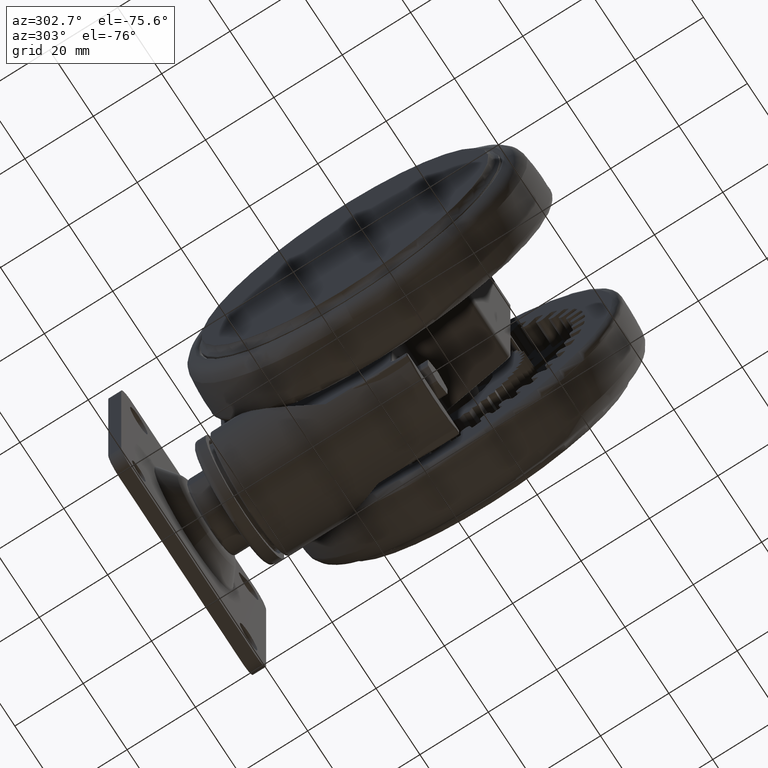
[diagram: clean part render]
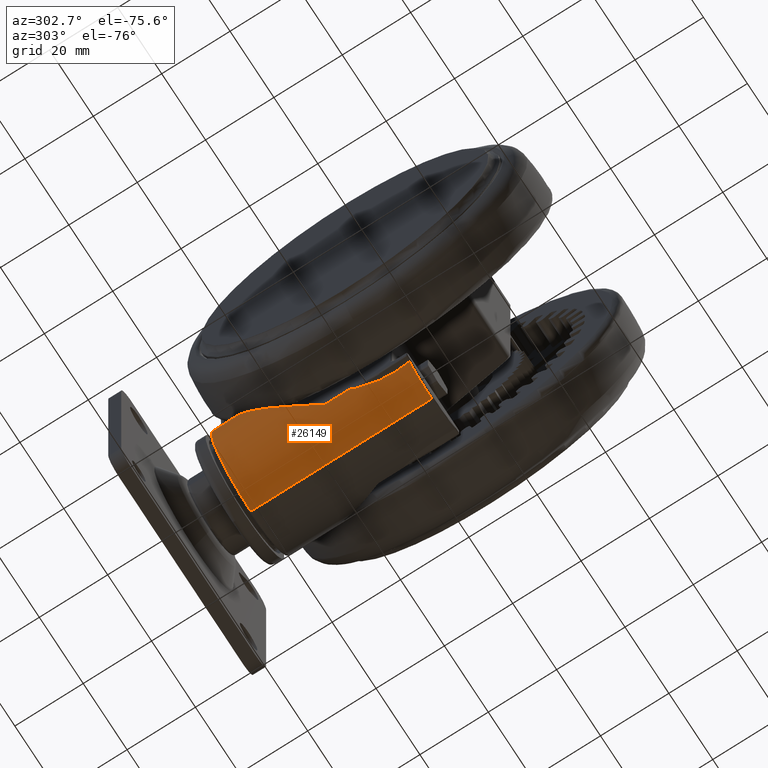
[diagram: same view with one face highlighted and labeled with its STEP entity id]
A machine part, auxiliary view. The second image highlights one B-rep face of the part: STEP entity #26149.
In plain terms, the highlighted cylindrical surface (partial cylindrical patch) has radius 18 mm, axis along (0, -1, 0).
Its self-contained STEP definition (entity closure, byte-faithful):
#95 = VECTOR ( 'NONE', #55644, 1000.000000000000100 ) ;
#1721 = ORIENTED_EDGE ( 'NONE', *, *, #42346, .T. ) ;
#2391 = CARTESIAN_POINT ( 'NONE',  ( 6.476000464306293800, 50.91205195990941200, -32.60000000000154300 ) ) ;
#2786 = B_SPLINE_CURVE_WITH_KNOTS ( 'NONE', 3,
 ( #3073, #32850, #9197, #51374, #15247, #57469, #21307, #63510, #27334, #69576 ),
 .UNSPECIFIED., .F., .F.,
 ( 4, 2, 2, 2, 4 ),
 ( 0.001906315081808173500, 0.009547126951555750400, 0.01145732991899264600, 0.01336753288642953900, 0.01718793882130333400 ),
 .UNSPECIFIED. ) ;
#3073 = CARTESIAN_POINT ( 'NONE',  ( 45.52652324806915400, 20.67186012695275800, -44.09999999999990200 ) ) ;
#3075 = ORIENTED_EDGE ( 'NONE', *, *, #11002, .T. ) ;
#3684 = CARTESIAN_POINT ( 'NONE',  ( 21.75686975995390400, 47.23146822987447300, -50.19156380549986100 ) ) ;
#3952 = CARTESIAN_POINT ( 'NONE',  ( 39.35881004721399300, 33.99384150147793100, -47.15087994683511900 ) ) ;
#4476 = CARTESIAN_POINT ( 'NONE',  ( 45.12416390052679600, 21.28040066082874300, -44.41288413382188300 ) ) ;
#4696 = DIRECTION ( 'NONE',  ( 0.2095320203294540100, -0.9778017858731171700, 0.0000000000000000000 ) ) ;
#4756 = EDGE_CURVE ( 'NONE', #31883, #50589, #8672, .T. ) ;
#4784 = CARTESIAN_POINT ( 'NONE',  ( 11.48250933213939400, 48.70165588472637100, -44.42859405854314800 ) ) ;
#5041 = CARTESIAN_POINT ( 'NONE',  ( 7.421299678677473600, 50.50001255643702100, -38.05598356291712700 ) ) ;
#5114 = EDGE_LOOP ( 'NONE', ( #6891, #1721, #43096, #24942, #52195, #3075, #70985, #14456, #53356, #13183 ) ) ;
#6891 = ORIENTED_EDGE ( 'NONE', *, *, #26213, .F. ) ;
#7926 = LINE ( 'NONE', #30287, #54167 ) ;
#8270 = CARTESIAN_POINT ( 'NONE',  ( 11.02927832659506700, 50.81663834371412500, -44.42857142857131700 ) ) ;
#8672 = B_SPLINE_CURVE_WITH_KNOTS ( 'NONE', 3,
 ( #4784, #34822, #28748, #47004, #10876, #53072, #16937, #59177, #22981, #65230, #29011, #71302, #35075, #77392, #41184, #5041, #47258, #11139, #53345, #17199, #59434, #23229, #65486, #29266 ),
 .UNSPECIFIED., .F., .F.,
 ( 4, 2, 2, 2, 2, 1, 2, 2, 2, 1, 2, 2, 4 ),
 ( 0.009056103137403520200, 0.07039218675244238200, 0.1010602285599616300, 0.1317282703674808900, 0.1930643539825193100, 0.2237323957900381700, 0.2390664166937979400, 0.2544004375975577000, 0.3157365212125969300, 0.3464045630201162400, 0.3617385839238762000, 0.3770726048276362200, 0.4997447720577209400 ),
 .UNSPECIFIED. ) ;
#9197 = CARTESIAN_POINT ( 'NONE',  ( 47.41730577508661800, 16.06464337357189400, -42.94835618722976300 ) ) ;
#9794 = CARTESIAN_POINT ( 'NONE',  ( 23.74704895355020200, 46.26918596355218200, -50.49163498098415900 ) ) ;
#10052 = CARTESIAN_POINT ( 'NONE',  ( 41.47724468320808500, 31.40718194220290400, -45.92791821531002200 ) ) ;
#10570 = CARTESIAN_POINT ( 'NONE',  ( 45.07610946240250600, 21.25204192823279600, -44.47351311783498300 ) ) ;
#10876 = CARTESIAN_POINT ( 'NONE',  ( 10.05997500732819600, 49.34718300700581000, -42.81414109641562500 ) ) ;
#11002 = EDGE_CURVE ( 'NONE', #18791, #18506, #75440, .T. ) ;
#11139 = CARTESIAN_POINT ( 'NONE',  ( 7.049780842113825900, 50.65984652821551000, -36.86258187287643300 ) ) ;
#13183 = ORIENTED_EDGE ( 'NONE', *, *, #4756, .T. ) ;
#13975 = B_SPLINE_CURVE_WITH_KNOTS ( 'NONE', 3,
 ( #8270, #33434, #51708, #15574, #57798, #21626, #63866, #27660, #69921, #33702, #76031, #39815, #3684, #45911, #9794, #51976, #15828, #58073, #21896, #64123, #27925, #70175, #33970, #76291, #40078, #3952, #46162, #10052, #52222, #16095 ),
 .UNSPECIFIED., .F., .F.,
 ( 4, 2, 2, 2, 2, 2, 2, 2, 2, 2, 2, 2, 2, 2, 4 ),
 ( -0.0002350967709736839200, 0.002424375685461168600, 0.005083848141896021200, 0.007743320598330878500, 0.01040279305476573600, 0.01173252928298316700, 0.01306226551120059200, 0.01572173796763545400, 0.02104068288050517400, 0.02370015533694003500, 0.02635962779337488700, 0.03167857270624458600, 0.03433804516267943700, 0.03699751761911429500, 0.04231646253198398400 ),
 .UNSPECIFIED. ) ;
#14456 = ORIENTED_EDGE ( 'NONE', *, *, #71906, .F. ) ;
#15247 = CARTESIAN_POINT ( 'NONE',  ( 48.44644101766055400, 12.38351521307539800, -42.60127374426890200 ) ) ;
#15574 = CARTESIAN_POINT ( 'NONE',  ( 13.64553297169610100, 50.18234736538629200, -46.76097203951972900 ) ) ;
#15828 = CARTESIAN_POINT ( 'NONE',  ( 27.60496866808398800, 44.10345599948000500, -50.60090085958052700 ) ) ;
#16095 = CARTESIAN_POINT ( 'NONE',  ( 43.36687984339671700, 28.69320510404808600, -44.59999999999990200 ) ) ;
#16365 = CARTESIAN_POINT ( 'NONE',  ( 45.46127740800003600, 20.81555217492873000, -44.14056610407362100 ) ) ;
#16631 = CARTESIAN_POINT ( 'NONE',  ( 45.05103338293710600, 21.09870380968451200, -44.53774907355757800 ) ) ;
#16734 = CARTESIAN_POINT ( 'NONE',  ( 35.16595659704160700, 2.933273708275743600, -32.59999999999990200 ) ) ;
#16937 = CARTESIAN_POINT ( 'NONE',  ( 9.591532985411269900, 49.55542356904560100, -42.18530246007093600 ) ) ;
#17199 = CARTESIAN_POINT ( 'NONE',  ( 6.883954124484628100, 50.73151581254025900, -36.18986221168097500 ) ) ;
#18090 = LINE ( 'NONE', #55916, #95 ) ;
#18470 = DIRECTION ( 'NONE',  ( 0.2095320203294540100, -0.9778017858731171700, 0.0000000000000000000 ) ) ;
#18506 = VERTEX_POINT ( 'NONE', #36422 ) ;
#18791 = VERTEX_POINT ( 'NONE', #63333 ) ;
#18852 = VERTEX_POINT ( 'NONE', #63865 ) ;
#21307 = CARTESIAN_POINT ( 'NONE',  ( 48.89023899040239500, 10.49574656123429200, -42.54353857457529400 ) ) ;
#21626 = CARTESIAN_POINT ( 'NONE',  ( 15.84094489558618200, 49.53424527487990800, -48.13277697544624800 ) ) ;
#21896 = CARTESIAN_POINT ( 'NONE',  ( 30.54068544453950600, 42.09529759906303800, -50.22908029314876200 ) ) ;
#22419 = CARTESIAN_POINT ( 'NONE',  ( 45.39261297533455800, 20.95694078010492900, -44.18547517639034800 ) ) ;
#22678 = CARTESIAN_POINT ( 'NONE',  ( 45.06990145979006700, 20.85658705708014800, -44.57402602149733200 ) ) ;
#22784 = DIRECTION ( 'NONE',  ( -0.9778017858731171700, -0.2095320203294540600, 0.0000000000000000000 ) ) ;
#22981 = CARTESIAN_POINT ( 'NONE',  ( 8.831937891508632200, 49.88907186854071100, -41.03405952956919100 ) ) ;
#23229 = CARTESIAN_POINT ( 'NONE',  ( 6.589218395546026000, 50.85965757105450500, -34.80500838274063800 ) ) ;
#23763 = CIRCLE ( 'NONE', #44959, 18.00000000000000000 ) ;
#24942 = ORIENTED_EDGE ( 'NONE', *, *, #61139, .T. ) ;
#26149 = ADVANCED_FACE ( 'NONE', ( #27702 ), #41873, .T. ) ;
#26213 = EDGE_CURVE ( 'NONE', #78253, #50589, #7926, .T. ) ;
#27137 = CARTESIAN_POINT ( 'NONE',  ( 11.02927832659506700, 50.81663834371412500, -44.42857142857131700 ) ) ;
#27334 = CARTESIAN_POINT ( 'NONE',  ( 49.47918435303753200, 7.311965080320049100, -42.68189357500663300 ) ) ;
#27660 = CARTESIAN_POINT ( 'NONE',  ( 18.17403324779406400, 48.72745299782513200, -49.19323334807712200 ) ) ;
#27702 = FACE_OUTER_BOUND ( 'NONE', #5114, .T. ) ;
#27925 = CARTESIAN_POINT ( 'NONE',  ( 32.62273667536007300, 40.50287877536737800, -49.78479454635713400 ) ) ;
#28443 = CARTESIAN_POINT ( 'NONE',  ( 45.27177858794968300, 21.14817406805459800, -44.27744604654851900 ) ) ;
#28698 = CARTESIAN_POINT ( 'NONE',  ( 45.11775083674890400, 20.53537082117536600, -44.59701437213208000 ) ) ;
#28748 = CARTESIAN_POINT ( 'NONE',  ( 10.73525011569896900, 49.04343969618360400, -43.63887173087292100 ) ) ;
#28992 = DIRECTION ( 'NONE',  ( 0.2095320203294540300, -0.9778017858731172800, 0.0000000000000000000 ) ) ;
#29011 = CARTESIAN_POINT ( 'NONE',  ( 8.243291458306034200, 50.14500306278548400, -39.95471184561767300 ) ) ;
#29266 = CARTESIAN_POINT ( 'NONE',  ( 6.476000464306293800, 50.91205195990941200, -32.60000000000154300 ) ) ;
#30287 = CARTESIAN_POINT ( 'NONE',  ( 6.355561363699708400, 51.47409288655735800, -32.59999999999990200 ) ) ;
#31809 = CARTESIAN_POINT ( 'NONE',  ( 49.63457593149908600, 6.033737508124101400, -42.84920381202325500 ) ) ;
#31883 = VERTEX_POINT ( 'NONE', #72241 ) ;
#32699 = DIRECTION ( 'NONE',  ( 0.2095320203294540100, -0.9778017858731171700, 0.0000000000000000000 ) ) ;
#32850 = CARTESIAN_POINT ( 'NONE',  ( 46.55441223974635500, 18.40812232927026700, -43.46091784903950400 ) ) ;
#33434 = CARTESIAN_POINT ( 'NONE',  ( 11.63770355769968000, 50.68458593180049100, -45.07922728191991300 ) ) ;
#33702 = CARTESIAN_POINT ( 'NONE',  ( 20.15423196026160100, 47.93713112353076200, -49.82178052406618500 ) ) ;
#33970 = CARTESIAN_POINT ( 'NONE',  ( 35.86819501391942600, 37.68733824383362900, -48.77391428133914500 ) ) ;
#34516 = CARTESIAN_POINT ( 'NONE',  ( 45.20408589664426600, 21.23363367454629400, -44.33386713041839800 ) ) ;
#34776 = CARTESIAN_POINT ( 'NONE',  ( 45.18335381211282000, 20.21645063086575100, -44.59999999999990200 ) ) ;
#34822 = CARTESIAN_POINT ( 'NONE',  ( 11.09798292285477600, 48.87843710689766400, -44.03980122807443800 ) ) ;
#35075 = CARTESIAN_POINT ( 'NONE',  ( 7.952518275341931900, 50.27087684415561600, -39.34102576071745000 ) ) ;
#36422 = CARTESIAN_POINT ( 'NONE',  ( 45.18335381211282000, 20.21645063086575100, -44.59999999999990200 ) ) ;
#39815 = CARTESIAN_POINT ( 'NONE',  ( 21.35393170056037300, 47.41495858380194800, -50.11054811896131900 ) ) ;
#40078 = CARTESIAN_POINT ( 'NONE',  ( 38.23398638590284500, 35.25420359380443400, -47.72485366956966100 ) ) ;
#40609 = CARTESIAN_POINT ( 'NONE',  ( 45.15197850910045900, 21.27277722593488100, -44.38338704118243100 ) ) ;
#41184 = CARTESIAN_POINT ( 'NONE',  ( 7.618120994325122000, 50.41540222872938400, -38.57773352672102600 ) ) ;
#41873 = CYLINDRICAL_SURFACE ( 'NONE', #69800, 18.00000000000000400 ) ;
#42346 = EDGE_CURVE ( 'NONE', #78253, #55361, #54662, .T. ) ;
#43096 = ORIENTED_EDGE ( 'NONE', *, *, #48773, .T. ) ;
#43788 = AXIS2_PLACEMENT_3D ( 'NONE', #65199, #28992, #71275 ) ;
#44959 = AXIS2_PLACEMENT_3D ( 'NONE', #16734, #58981, #22784 ) ;
#45911 = CARTESIAN_POINT ( 'NONE',  ( 22.95703361132284200, 46.66620286919158600, -50.39933494646284400 ) ) ;
#46162 = CARTESIAN_POINT ( 'NONE',  ( 39.90199736501198700, 33.35433470680191400, -46.85220153115260900 ) ) ;
#46688 = CARTESIAN_POINT ( 'NONE',  ( 45.10999202258552300, 21.27862427633948200, -44.42922427157563400 ) ) ;
#47004 = CARTESIAN_POINT ( 'NONE',  ( 10.22461333856173300, 49.27343611749364500, -43.02222988121997100 ) ) ;
#47178 = VECTOR ( 'NONE', #32699, 1000.000000000000100 ) ;
#47258 = CARTESIAN_POINT ( 'NONE',  ( 7.166829703044214700, 50.60947757452990500, -37.26223492062969500 ) ) ;
#47284 = CARTESIAN_POINT ( 'NONE',  ( 6.460327373864432200, 50.98519199362079500, -32.59999999999990900 ) ) ;
#48773 = EDGE_CURVE ( 'NONE', #55361, #18852, #49049, .T. ) ;
#49049 = LINE ( 'NONE', #68925, #47178 ) ;
#50589 = VERTEX_POINT ( 'NONE', #2391 ) ;
#51374 = CARTESIAN_POINT ( 'NONE',  ( 48.28386344473221900, 13.00259203546442200, -42.64512942329209700 ) ) ;
#51435 = VERTEX_POINT ( 'NONE', #67418 ) ;
#51708 = CARTESIAN_POINT ( 'NONE',  ( 12.28624109619457400, 50.53233291307901700, -45.67558530693243300 ) ) ;
#51976 = CARTESIAN_POINT ( 'NONE',  ( 26.08635705208238100, 45.01786900443552500, -50.65077555357825600 ) ) ;
#52195 = ORIENTED_EDGE ( 'NONE', *, *, #60641, .F. ) ;
#52222 = CARTESIAN_POINT ( 'NONE',  ( 42.45517956841992900, 30.07113645939359300, -45.27388538984213500 ) ) ;
#52769 = CARTESIAN_POINT ( 'NONE',  ( 45.06638261420317800, 21.21284227246761100, -44.49362939269904900 ) ) ;
#53072 = CARTESIAN_POINT ( 'NONE',  ( 9.741937225572550900, 49.48885912317552300, -42.39337006707162900 ) ) ;
#53345 = CARTESIAN_POINT ( 'NONE',  ( 6.948209614987275600, 50.70371267308380000, -36.45938107879862900 ) ) ;
#53356 = ORIENTED_EDGE ( 'NONE', *, *, #55241, .T. ) ;
#53844 = DIRECTION ( 'NONE',  ( 0.2095320203294540300, -0.9778017858731172800, 0.0000000000000000000 ) ) ;
#54167 = VECTOR ( 'NONE', #18470, 1000.000000000000100 ) ;
#54662 = CIRCLE ( 'NONE', #43788, 18.00000000000000000 ) ;
#55241 = EDGE_CURVE ( 'NONE', #56682, #31883, #61573, .T. ) ;
#55361 = VERTEX_POINT ( 'NONE', #78093 ) ;
#55644 = DIRECTION ( 'NONE',  ( -0.2095320203294540100, 0.9778017858731171700, -0.0000000000000000000 ) ) ;
#55916 = CARTESIAN_POINT ( 'NONE',  ( 37.07458107981367600, 58.05683629800467600, -44.59999999999990200 ) ) ;
#56682 = VERTEX_POINT ( 'NONE', #27137 ) ;
#57469 = CARTESIAN_POINT ( 'NONE',  ( 48.74941866529857700, 11.13121173204191000, -42.55042778904451900 ) ) ;
#57798 = CARTESIAN_POINT ( 'NONE',  ( 14.35767965766509300, 49.98433564499480000, -47.25137462673866700 ) ) ;
#58073 = CARTESIAN_POINT ( 'NONE',  ( 29.81902624597425700, 42.60983290536877600, -50.34456196508935500 ) ) ;
#58616 = CARTESIAN_POINT ( 'NONE',  ( 45.52652324806915400, 20.67186012695275800, -44.09999999999990200 ) ) ;
#58631 = VERTEX_POINT ( 'NONE', #31809 ) ;
#58867 = CARTESIAN_POINT ( 'NONE',  ( 45.05594851961288300, 21.01765286459269100, -44.55142176518104700 ) ) ;
#58981 = DIRECTION ( 'NONE',  ( -0.2095320203294540600, 0.9778017858731172800, 0.0000000000000000000 ) ) ;
#59177 = CARTESIAN_POINT ( 'NONE',  ( 9.121806857453952600, 49.76238628585398500, -41.50182582627377300 ) ) ;
#59434 = CARTESIAN_POINT ( 'NONE',  ( 6.853998702482410700, 50.74450294473563600, -36.05689965374797600 ) ) ;
#60641 = EDGE_CURVE ( 'NONE', #18791, #58631, #2786, .T. ) ;
#61139 = EDGE_CURVE ( 'NONE', #18852, #58631, #23763, .T. ) ;
#61573 = LINE ( 'NONE', #70953, #75747 ) ;
#63333 = CARTESIAN_POINT ( 'NONE',  ( 45.52652324806915400, 20.67186012695275800, -44.09999999999990200 ) ) ;
#63510 = CARTESIAN_POINT ( 'NONE',  ( 49.27416820486171600, 8.587023151839767700, -42.58048995742264300 ) ) ;
#63865 = CARTESIAN_POINT ( 'NONE',  ( 52.76638874275771900, 6.704850074205924500, -32.59999999999990200 ) ) ;
#63866 = CARTESIAN_POINT ( 'NONE',  ( 16.61586883274617300, 49.28055193213201300, -48.52456164366995500 ) ) ;
#64123 = CARTESIAN_POINT ( 'NONE',  ( 31.94151065324371400, 41.04251390601535100, -49.94932792082423100 ) ) ;
#64668 = CARTESIAN_POINT ( 'NONE',  ( 45.29251011691526700, 21.11717921195439400, -44.26125832158710700 ) ) ;
#64921 = CARTESIAN_POINT ( 'NONE',  ( 45.08064560108277900, 20.77596351748782100, -44.58118410168202700 ) ) ;
#65199 = CARTESIAN_POINT ( 'NONE',  ( 24.06075951958054300, 54.75676835955096800, -32.59999999999990200 ) ) ;
#65230 = CARTESIAN_POINT ( 'NONE',  ( 8.433455936887153100, 50.06246565030544800, -40.31705270437306200 ) ) ;
#65486 = CARTESIAN_POINT ( 'NONE',  ( 6.476035756100190000, 50.91188728258354200, -33.69239575260115100 ) ) ;
#65962 = DIRECTION ( 'NONE',  ( 0.9778017858731171700, 0.2095320203294540600, 0.0000000000000000000 ) ) ;
#67418 = CARTESIAN_POINT ( 'NONE',  ( 43.36687984339671700, 28.69320510404808600, -44.59999999999990200 ) ) ;
#68925 = CARTESIAN_POINT ( 'NONE',  ( 41.55642565513193200, 59.01724561841770400, -32.59999999999990200 ) ) ;
#69576 = CARTESIAN_POINT ( 'NONE',  ( 49.63457593149908600, 6.033737508124101400, -42.84920381202325500 ) ) ;
#69800 = AXIS2_PLACEMENT_3D ( 'NONE', #72060, #53844, #65962 ) ;
#69921 = CARTESIAN_POINT ( 'NONE',  ( 18.96220390765247600, 48.42674618934594800, -49.47359681465479000 ) ) ;
#70175 = CARTESIAN_POINT ( 'NONE',  ( 34.61277627571075800, 38.84480831849847200, -49.22831660429931600 ) ) ;
#70725 = CARTESIAN_POINT ( 'NONE',  ( 45.22760144189676600, 21.20613628974393100, -44.31377292764543100 ) ) ;
#70953 = CARTESIAN_POINT ( 'NONE',  ( 10.68938520889553000, 52.40278301492011800, -44.42857142857131700 ) ) ;
#70985 = ORIENTED_EDGE ( 'NONE', *, *, #75756, .T. ) ;
#70989 = CARTESIAN_POINT ( 'NONE',  ( 45.14921656094734500, 20.37575547172679800, -44.60000000000068400 ) ) ;
#71275 = DIRECTION ( 'NONE',  ( 0.9778017858731171700, 0.2095320203294540900, 0.0000000000000000000 ) ) ;
#71302 = CARTESIAN_POINT ( 'NONE',  ( 8.066968413421294700, 50.22134983385904400, -39.58715839148217700 ) ) ;
#71906 = EDGE_CURVE ( 'NONE', #56682, #51435, #13975, .T. ) ;
#72060 = CARTESIAN_POINT ( 'NONE',  ( 23.95599350941581600, 55.24566925248753100, -32.59999999999990200 ) ) ;
#72241 = CARTESIAN_POINT ( 'NONE',  ( 11.48250933213939400, 48.70165588472637100, -44.42859405854314800 ) ) ;
#75440 = B_SPLINE_CURVE_WITH_KNOTS ( 'NONE', 3,
 ( #58616, #16365, #22419, #64668, #28443, #70725, #34516, #76820, #40609, #4476, #46688, #10570, #52769, #16631, #58867, #22678, #64921, #28698, #70989, #34776 ),
 .UNSPECIFIED., .F., .F.,
 ( 4, 2, 2, 2, 2, 2, 2, 2, 2, 4 ),
 ( 0.0000000000000000000, 0.0004878935358183691000, 0.0006098669197729629000, 0.0007318403037275567600, 0.0007928269957048566200, 0.0008538136876821565900, 0.0009757870716367824300, 0.001219733839546053500, 0.001463680607455324500, 0.001951574143273870000 ),
 .UNSPECIFIED. ) ;
#75747 = VECTOR ( 'NONE', #4696, 1000.000000000000100 ) ;
#75756 = EDGE_CURVE ( 'NONE', #18506, #51435, #18090, .T. ) ;
#76031 = CARTESIAN_POINT ( 'NONE',  ( 20.55321502309402600, 47.76749815826433800, -49.92574501770826600 ) ) ;
#76291 = CARTESIAN_POINT ( 'NONE',  ( 37.65419572746473200, 35.87289536109778300, -47.99914056481367900 ) ) ;
#76820 = CARTESIAN_POINT ( 'NONE',  ( 45.16569932411335500, 21.26418146135867500, -44.36995540146782000 ) ) ;
#77392 = CARTESIAN_POINT ( 'NONE',  ( 7.897054366937222600, 50.29486976808221500, -39.21797509977695000 ) ) ;
#78093 = CARTESIAN_POINT ( 'NONE',  ( 41.66119166529664900, 58.52834472548114100, -32.59999999999990200 ) ) ;
#78253 = VERTEX_POINT ( 'NONE', #47284 ) ;